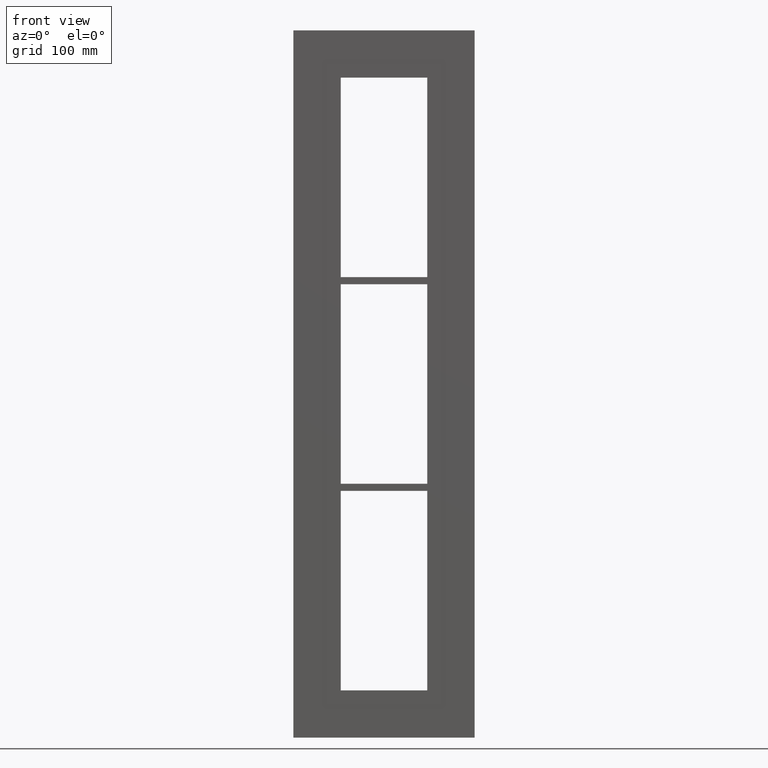
[diagram: clean part render]
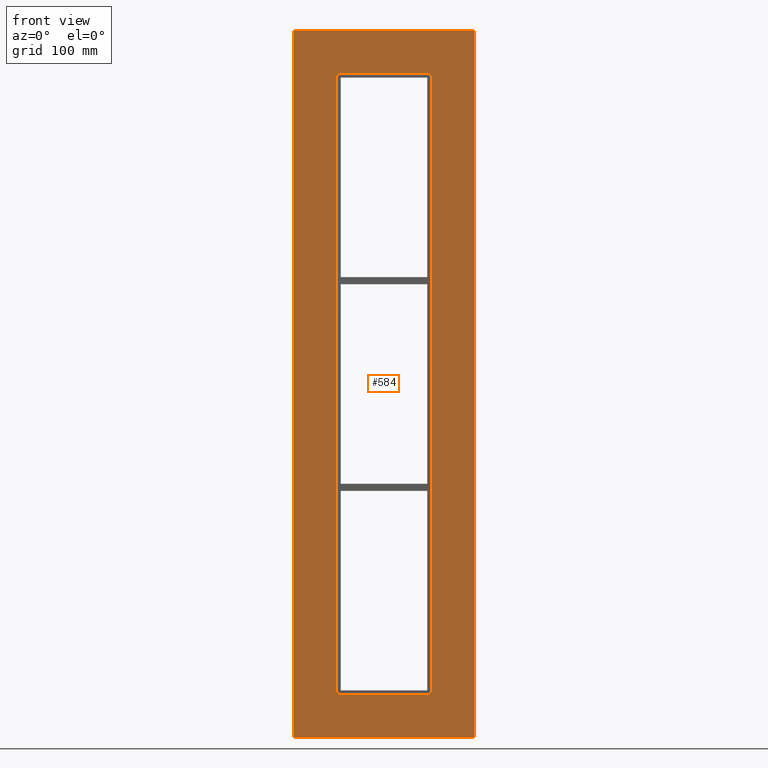
[diagram: same view with one face highlighted and labeled with its STEP entity id]
A machine part, front view. The second image highlights one B-rep face of the part: STEP entity #584.
In plain terms, the highlighted planar face has unit normal (0, 1, 0).
Its self-contained STEP definition (entity closure, byte-faithful):
#475=CARTESIAN_POINT('',(0.0,0.0,0.0));
#476=DIRECTION('',(0.0,1.0,0.0));
#477=DIRECTION('',(0.0,0.0,1.0));
#478=AXIS2_PLACEMENT_3D('',#475,#476,#477);
#479=PLANE('',#478);
#480=CARTESIAN_POINT('',(-126.25,0.0,493.00000000000006));
#481=VERTEX_POINT('',#480);
#482=CARTESIAN_POINT('',(126.25,0.0,493.00000000000006));
#483=VERTEX_POINT('',#482);
#484=CARTESIAN_POINT('',(-126.25,0.0,493.00000000000006));
#485=DIRECTION('',(1.0,0.0,0.0));
#486=VECTOR('',#485,252.5);
#487=LINE('',#484,#486);
#488=EDGE_CURVE('',#481,#483,#487,.T.);
#489=ORIENTED_EDGE('',*,*,#488,.F.);
#490=CARTESIAN_POINT('',(-126.25,0.0,-493.00000000000006));
#491=VERTEX_POINT('',#490);
#492=CARTESIAN_POINT('',(-126.25,0.0,-493.00000000000006));
#493=DIRECTION('',(0.0,0.0,1.0));
#494=VECTOR('',#493,986.00000000000011);
#495=LINE('',#492,#494);
#496=EDGE_CURVE('',#491,#481,#495,.T.);
#497=ORIENTED_EDGE('',*,*,#496,.F.);
#498=CARTESIAN_POINT('',(126.25,0.0,-493.00000000000006));
#499=VERTEX_POINT('',#498);
#500=CARTESIAN_POINT('',(126.25,0.0,-493.00000000000006));
#501=DIRECTION('',(-1.0,0.0,0.0));
#502=VECTOR('',#501,252.5);
#503=LINE('',#500,#502);
#504=EDGE_CURVE('',#499,#491,#503,.T.);
#505=ORIENTED_EDGE('',*,*,#504,.F.);
#506=CARTESIAN_POINT('',(126.25,0.0,493.00000000000006));
#507=DIRECTION('',(0.0,0.0,-1.0));
#508=VECTOR('',#507,986.00000000000011);
#509=LINE('',#506,#508);
#510=EDGE_CURVE('',#483,#499,#509,.T.);
#511=ORIENTED_EDGE('',*,*,#510,.F.);
#512=EDGE_LOOP('',(#489,#497,#505,#511));
#513=FACE_OUTER_BOUND('',#512,.T.);
#514=CARTESIAN_POINT('',(-66.250000000000014,0.0,-427.0));
#515=VERTEX_POINT('',#514);
#516=CARTESIAN_POINT('',(-60.25,0.0,-433.0));
#517=VERTEX_POINT('',#516);
#518=CARTESIAN_POINT('',(-60.25,0.0,-427.0));
#519=DIRECTION('',(0.0,-1.0,0.0));
#520=DIRECTION('',(-0.707106781186552,0.0,-0.707106781186543));
#521=AXIS2_PLACEMENT_3D('',#518,#519,#520);
#522=CIRCLE('',#521,6.000000000000001);
#523=EDGE_CURVE('',#515,#517,#522,.T.);
#524=ORIENTED_EDGE('',*,*,#523,.F.);
#525=CARTESIAN_POINT('',(-66.250000000000014,0.0,427.0));
#526=VERTEX_POINT('',#525);
#527=CARTESIAN_POINT('',(-66.250000000000014,0.0,427.0));
#528=DIRECTION('',(0.0,0.0,-1.0));
#529=VECTOR('',#528,854.0);
#530=LINE('',#527,#529);
#531=EDGE_CURVE('',#526,#515,#530,.T.);
#532=ORIENTED_EDGE('',*,*,#531,.F.);
#533=CARTESIAN_POINT('',(-60.25,0.0,433.00000000000011));
#534=VERTEX_POINT('',#533);
#535=CARTESIAN_POINT('',(-60.25,0.0,427.0));
#536=DIRECTION('',(0.0,-1.0,0.0));
#537=DIRECTION('',(-0.707106781186543,0.0,0.707106781186552));
#538=AXIS2_PLACEMENT_3D('',#535,#536,#537);
#539=CIRCLE('',#538,6.0);
#540=EDGE_CURVE('',#534,#526,#539,.T.);
#541=ORIENTED_EDGE('',*,*,#540,.F.);
#542=CARTESIAN_POINT('',(60.249999999999986,0.0,433.00000000000011));
#543=VERTEX_POINT('',#542);
#544=CARTESIAN_POINT('',(60.249999999999979,0.0,433.00000000000011));
#545=DIRECTION('',(-1.0,0.0,0.0));
#546=VECTOR('',#545,120.49999999999999);
#547=LINE('',#544,#546);
#548=EDGE_CURVE('',#543,#534,#547,.T.);
#549=ORIENTED_EDGE('',*,*,#548,.F.);
#550=CARTESIAN_POINT('',(66.249999999999986,0.0,427.00000000000011));
#551=VERTEX_POINT('',#550);
#552=CARTESIAN_POINT('',(60.249999999999986,0.0,427.00000000000011));
#553=DIRECTION('',(0.0,-1.0,0.0));
#554=DIRECTION('',(0.707106781186543,0.0,0.707106781186552));
#555=AXIS2_PLACEMENT_3D('',#552,#553,#554);
#556=CIRCLE('',#555,6.0);
#557=EDGE_CURVE('',#551,#543,#556,.T.);
#558=ORIENTED_EDGE('',*,*,#557,.F.);
#559=CARTESIAN_POINT('',(66.249999999999986,0.0,-426.99999999999989));
#560=VERTEX_POINT('',#559);
#561=CARTESIAN_POINT('',(66.249999999999986,0.0,-426.99999999999994));
#562=DIRECTION('',(0.0,0.0,1.0));
#563=VECTOR('',#562,854.0);
#564=LINE('',#561,#563);
#565=EDGE_CURVE('',#560,#551,#564,.T.);
#566=ORIENTED_EDGE('',*,*,#565,.F.);
#567=CARTESIAN_POINT('',(60.249999999999986,0.0,-433.0));
#568=VERTEX_POINT('',#567);
#569=CARTESIAN_POINT('',(60.249999999999986,0.0,-426.99999999999989));
#570=DIRECTION('',(0.0,-1.0,0.0));
#571=DIRECTION('',(0.707106781186543,0.0,-0.707106781186552));
#572=AXIS2_PLACEMENT_3D('',#569,#570,#571);
#573=CIRCLE('',#572,6.0);
#574=EDGE_CURVE('',#568,#560,#573,.T.);
#575=ORIENTED_EDGE('',*,*,#574,.F.);
#576=CARTESIAN_POINT('',(-60.250000000000007,0.0,-433.0));
#577=DIRECTION('',(1.0,0.0,0.0));
#578=VECTOR('',#577,120.5);
#579=LINE('',#576,#578);
#580=EDGE_CURVE('',#517,#568,#579,.T.);
#581=ORIENTED_EDGE('',*,*,#580,.F.);
#582=EDGE_LOOP('',(#524,#532,#541,#549,#558,#566,#575,#581));
#583=FACE_BOUND('',#582,.T.);
#584=ADVANCED_FACE('',(#513,#583),#479,.F.);